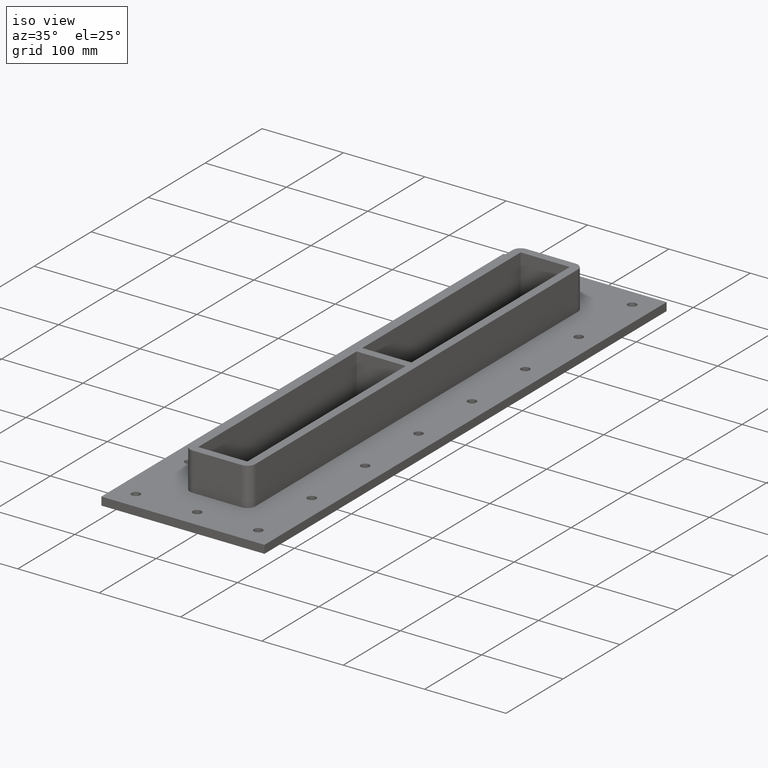
[diagram: clean part render]
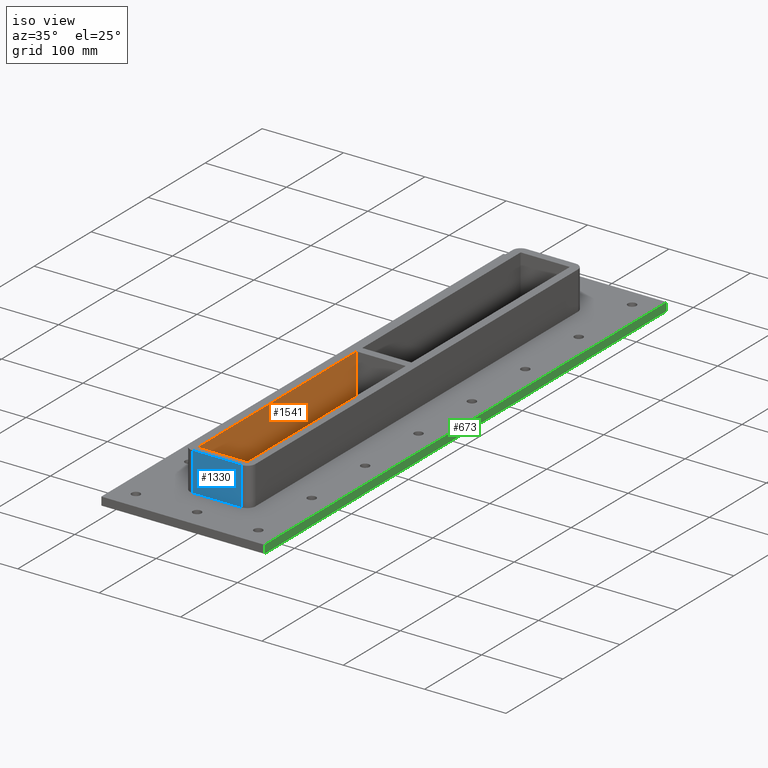
[diagram: same view with three faces highlighted in distinct colors, each labeled with its STEP entity id]
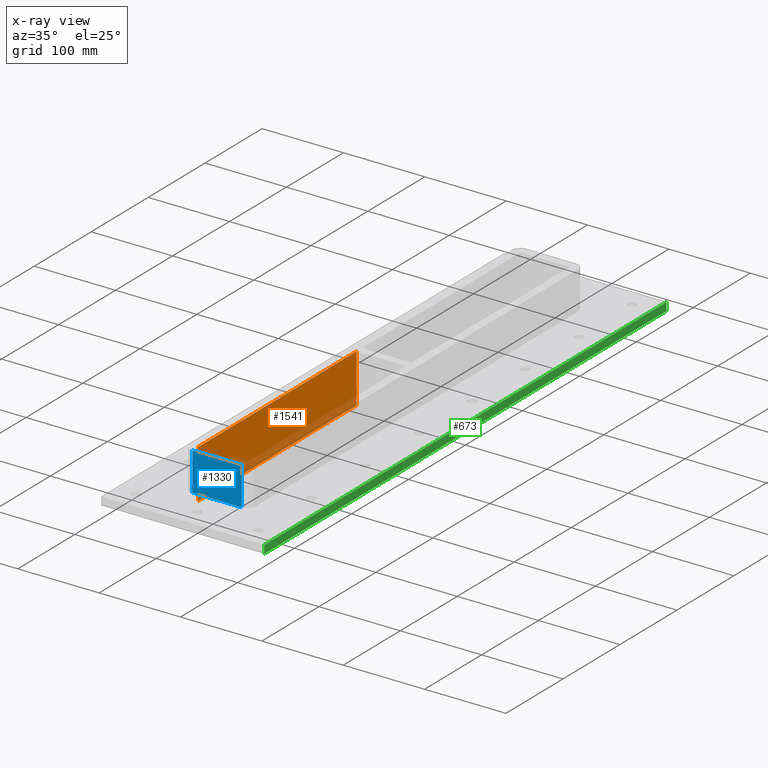
[diagram: x-ray of the same camera — body ghosted, the three highlighted faces saturated]
A machine part, iso view with three faces highlighted in distinct colors.
The next image is the same camera in x-ray (body ghosted, the three faces saturated) — at least one of them is partly hidden behind the body in this view.
Their STEP definitions:

[orange] entity #1541 — the highlighted planar face has unit normal (-1, 0, 0).
#1282=CARTESIAN_POINT('',(-30.249999999999986,-5.000000000000071,-30.0));
#1283=VERTEX_POINT('',#1282);
#1290=CARTESIAN_POINT('',(-30.249999999999901,-283.00000000000011,-30.0));
#1291=VERTEX_POINT('',#1290);
#1292=CARTESIAN_POINT('',(-30.249999999999986,-5.000000000000057,-30.0));
#1293=DIRECTION('',(0.0,-1.0,0.0));
#1294=VECTOR('',#1293,278.00000000000006);
#1295=LINE('',#1292,#1294);
#1296=EDGE_CURVE('',#1283,#1291,#1295,.T.);
#1511=CARTESIAN_POINT('',(-30.249999999999901,-283.00000000000011,30.0));
#1512=DIRECTION('',(-1.0,0.0,0.0));
#1513=DIRECTION('',(0.0,1.0,0.0));
#1514=AXIS2_PLACEMENT_3D('',#1511,#1512,#1513);
#1515=PLANE('',#1514);
#1516=ORIENTED_EDGE('',*,*,#1296,.F.);
#1517=CARTESIAN_POINT('',(-30.249999999999986,-5.000000000000071,30.0));
#1518=VERTEX_POINT('',#1517);
#1519=CARTESIAN_POINT('',(-30.249999999999986,-5.000000000000071,30.0));
#1520=DIRECTION('',(0.0,0.0,-1.0));
#1521=VECTOR('',#1520,60.0);
#1522=LINE('',#1519,#1521);
#1523=EDGE_CURVE('',#1518,#1283,#1522,.T.);
#1524=ORIENTED_EDGE('',*,*,#1523,.F.);
#1525=CARTESIAN_POINT('',(-30.249999999999901,-283.00000000000011,30.0));
#1526=VERTEX_POINT('',#1525);
#1527=CARTESIAN_POINT('',(-30.249999999999901,-283.00000000000011,30.0));
#1528=DIRECTION('',(0.0,1.0,0.0));
#1529=VECTOR('',#1528,278.00000000000006);
#1530=LINE('',#1527,#1529);
#1531=EDGE_CURVE('',#1526,#1518,#1530,.T.);
#1532=ORIENTED_EDGE('',*,*,#1531,.F.);
#1533=CARTESIAN_POINT('',(-30.249999999999901,-283.00000000000011,30.0));
#1534=DIRECTION('',(0.0,0.0,-1.0));
#1535=VECTOR('',#1534,60.0);
#1536=LINE('',#1533,#1535);
#1537=EDGE_CURVE('',#1526,#1291,#1536,.T.);
#1538=ORIENTED_EDGE('',*,*,#1537,.T.);
#1539=EDGE_LOOP('',(#1516,#1524,#1532,#1538));
#1540=FACE_OUTER_BOUND('',#1539,.T.);
#1541=ADVANCED_FACE('',(#1540),#1515,.F.);

[blue] entity #1330 — the highlighted planar face has unit normal (0, -1, 0).
#780=CARTESIAN_POINT('',(30.250000000000043,-293.0,-17.0));
#781=VERTEX_POINT('',#780);
#789=CARTESIAN_POINT('',(-30.249999999999964,-293.0,-17.0));
#790=VERTEX_POINT('',#789);
#791=CARTESIAN_POINT('',(-30.249999999999964,-293.00000000000011,-17.0));
#792=DIRECTION('',(1.0,0.0,0.0));
#793=VECTOR('',#792,60.500000000000014);
#794=LINE('',#791,#793);
#795=EDGE_CURVE('',#790,#781,#794,.T.);
#1014=CARTESIAN_POINT('',(30.25000000000005,-293.00000000000011,30.0));
#1015=VERTEX_POINT('',#1014);
#1023=CARTESIAN_POINT('',(30.25000000000005,-293.00000000000011,30.0));
#1024=DIRECTION('',(0.0,0.0,-1.0));
#1025=VECTOR('',#1024,47.0);
#1026=LINE('',#1023,#1025);
#1027=EDGE_CURVE('',#1015,#781,#1026,.T.);
#1307=CARTESIAN_POINT('',(-40.249999999999886,-293.00000000000011,0.0));
#1308=DIRECTION('',(0.0,-1.0,0.0));
#1309=DIRECTION('',(1.0,0.0,0.0));
#1310=AXIS2_PLACEMENT_3D('',#1307,#1308,#1309);
#1311=PLANE('',#1310);
#1312=ORIENTED_EDGE('',*,*,#795,.T.);
#1313=ORIENTED_EDGE('',*,*,#1027,.F.);
#1314=CARTESIAN_POINT('',(-30.249999999999893,-293.00000000000011,30.0));
#1315=VERTEX_POINT('',#1314);
#1316=CARTESIAN_POINT('',(-30.24999999999989,-293.00000000000011,30.0));
#1317=DIRECTION('',(1.0,0.0,0.0));
#1318=VECTOR('',#1317,60.499999999999943);
#1319=LINE('',#1316,#1318);
#1320=EDGE_CURVE('',#1315,#1015,#1319,.T.);
#1321=ORIENTED_EDGE('',*,*,#1320,.F.);
#1322=CARTESIAN_POINT('',(-30.249999999999893,-293.00000000000011,-17.0));
#1323=DIRECTION('',(0.0,0.0,1.0));
#1324=VECTOR('',#1323,47.0);
#1325=LINE('',#1322,#1324);
#1326=EDGE_CURVE('',#790,#1315,#1325,.T.);
#1327=ORIENTED_EDGE('',*,*,#1326,.F.);
#1328=EDGE_LOOP('',(#1312,#1313,#1321,#1327));
#1329=FACE_OUTER_BOUND('',#1328,.T.);
#1330=ADVANCED_FACE('',(#1329),#1311,.T.);

[green] entity #673 — the highlighted planar face has unit normal (1, 0, 0).
#617=CARTESIAN_POINT('',(100.24999999999994,353.00000000000006,-27.0));
#618=VERTEX_POINT('',#617);
#626=CARTESIAN_POINT('',(100.24999999999994,353.00000000000006,-17.0));
#627=VERTEX_POINT('',#626);
#634=CARTESIAN_POINT('',(100.24999999999994,353.00000000000006,-27.0));
#635=DIRECTION('',(0.0,0.0,1.0));
#636=VECTOR('',#635,10.0);
#637=LINE('',#634,#636);
#638=EDGE_CURVE('',#618,#627,#637,.T.);
#643=CARTESIAN_POINT('',(100.25000000000004,-353.00000000000006,-27.0));
#644=DIRECTION('',(1.0,0.0,0.0));
#645=DIRECTION('',(0.0,1.0,0.0));
#646=AXIS2_PLACEMENT_3D('',#643,#644,#645);
#647=PLANE('',#646);
#648=CARTESIAN_POINT('',(100.25000000000004,-353.00000000000006,-27.0));
#649=VERTEX_POINT('',#648);
#650=CARTESIAN_POINT('',(100.24999999999994,353.00000000000006,-27.0));
#651=DIRECTION('',(0.0,-1.0,0.0));
#652=VECTOR('',#651,706.00000000000011);
#653=LINE('',#650,#652);
#654=EDGE_CURVE('',#618,#649,#653,.T.);
#655=ORIENTED_EDGE('',*,*,#654,.F.);
#656=ORIENTED_EDGE('',*,*,#638,.T.);
#657=CARTESIAN_POINT('',(100.25000000000004,-353.00000000000006,-17.0));
#658=VERTEX_POINT('',#657);
#659=CARTESIAN_POINT('',(100.25000000000003,-353.00000000000006,-17.0));
#660=DIRECTION('',(0.0,1.0,0.0));
#661=VECTOR('',#660,706.00000000000011);
#662=LINE('',#659,#661);
#663=EDGE_CURVE('',#658,#627,#662,.T.);
#664=ORIENTED_EDGE('',*,*,#663,.F.);
#665=CARTESIAN_POINT('',(100.25000000000004,-353.00000000000006,-27.0));
#666=DIRECTION('',(0.0,0.0,1.0));
#667=VECTOR('',#666,10.0);
#668=LINE('',#665,#667);
#669=EDGE_CURVE('',#649,#658,#668,.T.);
#670=ORIENTED_EDGE('',*,*,#669,.F.);
#671=EDGE_LOOP('',(#655,#656,#664,#670));
#672=FACE_OUTER_BOUND('',#671,.T.);
#673=ADVANCED_FACE('',(#672),#647,.T.);